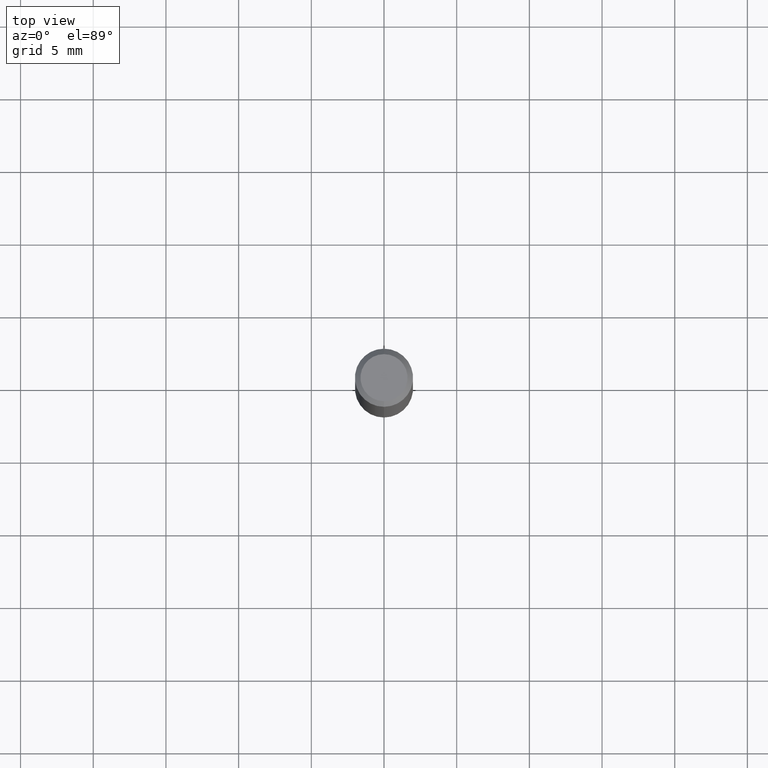
[diagram: clean part render]
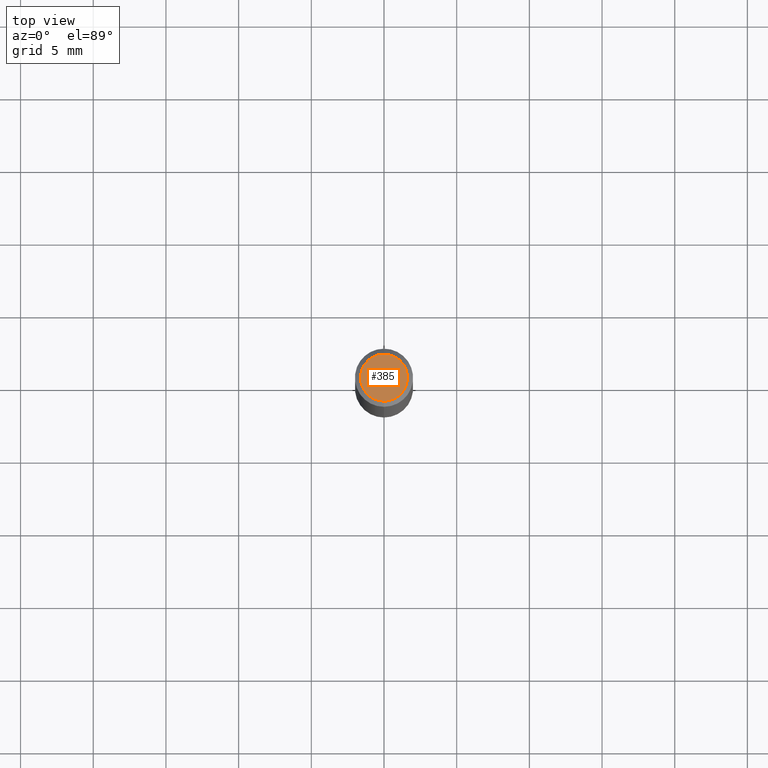
[diagram: same view with one face highlighted and labeled with its STEP entity id]
A machine part, top view. The second image highlights one B-rep face of the part: STEP entity #385.
In plain terms, the highlighted planar face has unit normal (0, -0, -1).
Its self-contained STEP definition (entity closure, byte-faithful):
#10 = CIRCLE ( 'NONE', #298, 0.06375000000000000111 ) ;
#50 = DIRECTION ( 'NONE',  ( -2.445483200868437747E-29, 3.491460724837364104E-15, 1.000000000000000000 ) ) ;
#52 = DIRECTION ( 'NONE',  ( 2.445483200868437467E-29, -3.491460724837363709E-15, -1.000000000000000000 ) ) ;
#91 = DIRECTION ( 'NONE',  ( -6.982962677686264344E-15, -1.000000000000000000, 3.491460724837363315E-15 ) ) ;
#114 = AXIS2_PLACEMENT_3D ( 'NONE', #442, #50, #91 ) ;
#128 = CARTESIAN_POINT ( 'NONE',  ( -4.888104823412213911E-16, -0.06375000000000000111, 4.576775909784569323E-16 ) ) ;
#130 = PLANE ( 'NONE',  #276 ) ;
#193 = EDGE_CURVE ( 'NONE', #511, #378, #10, .T. ) ;
#194 = EDGE_LOOP ( 'NONE', ( #462, #406 ) ) ;
#202 = CARTESIAN_POINT ( 'NONE',  ( 4.975360907851465623E-16, 0.06375000000000000111, 1.251634856169306932E-17 ) ) ;
#209 = DIRECTION ( 'NONE',  ( -2.445483200868437747E-29, 3.491460724837364104E-15, 1.000000000000000000 ) ) ;
#257 = CARTESIAN_POINT ( 'NONE',  ( 4.451638707024993845E-16, 0.06375000000000000111, -1.050321363233444415E-16 ) ) ;
#276 = AXIS2_PLACEMENT_3D ( 'NONE', #257, #52, #383 ) ;
#298 = AXIS2_PLACEMENT_3D ( 'NONE', #497, #209, #340 ) ;
#340 = DIRECTION ( 'NONE',  ( -6.982962677686264344E-15, -1.000000000000000000, 3.491460724837363315E-15 ) ) ;
#364 = CIRCLE ( 'NONE', #114, 0.06375000000000000111 ) ;
#369 = FACE_OUTER_BOUND ( 'NONE', #194, .T. ) ;
#378 = VERTEX_POINT ( 'NONE', #202 ) ;
#383 = DIRECTION ( 'NONE',  ( 6.982962677686265922E-15, 1.000000000000000000, -3.491460724837363709E-15 ) ) ;
#385 = ADVANCED_FACE ( 'NONE', ( #369 ), #130, .F. ) ;
#406 = ORIENTED_EDGE ( 'NONE', *, *, #193, .T. ) ;
#428 = EDGE_CURVE ( 'NONE', #378, #511, #364, .T. ) ;
#442 = CARTESIAN_POINT ( 'NONE',  ( -5.749256901477933004E-45, 8.208318364804939578E-31, 2.350969697700750185E-16 ) ) ;
#462 = ORIENTED_EDGE ( 'NONE', *, *, #428, .T. ) ;
#497 = CARTESIAN_POINT ( 'NONE',  ( -5.749256901477933004E-45, 8.208318364804939578E-31, 2.350969697700750185E-16 ) ) ;
#511 = VERTEX_POINT ( 'NONE', #128 ) ;